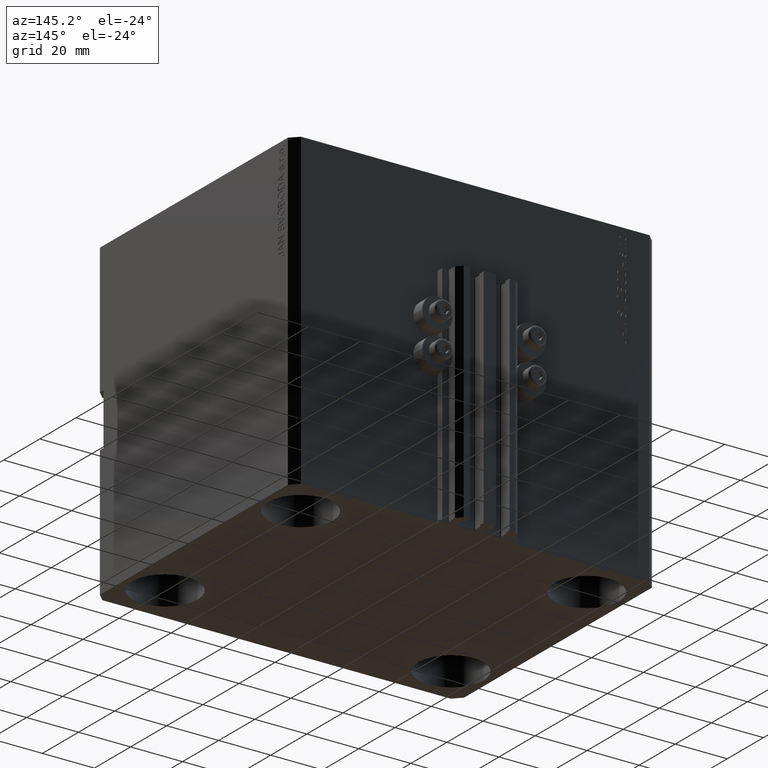
[diagram: clean part render]
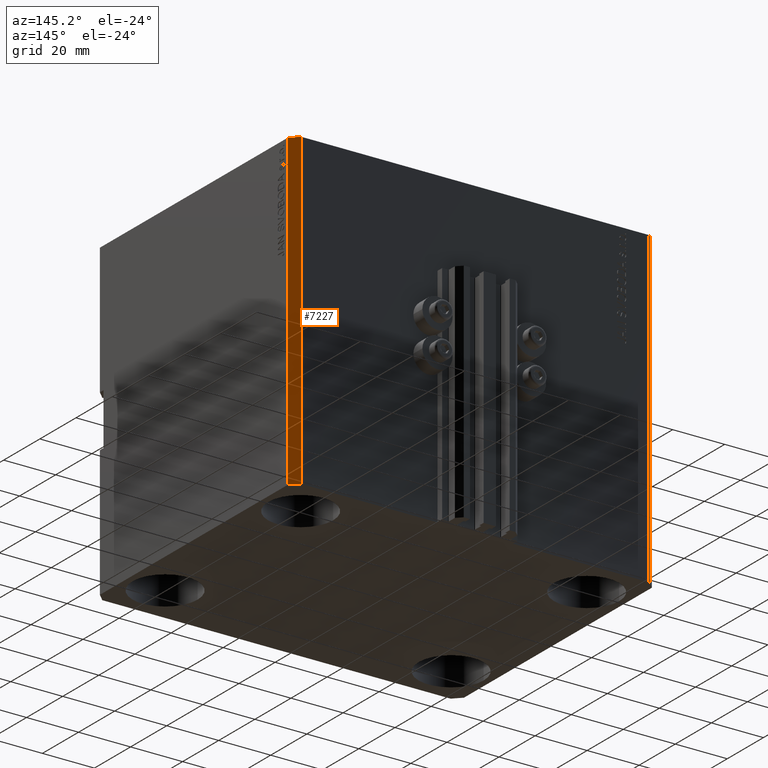
[diagram: same view with one face highlighted and labeled with its STEP entity id]
A machine part, auxiliary view. The second image highlights one B-rep face of the part: STEP entity #7227.
In plain terms, the highlighted planar face has unit normal (0.7071, 0.7071, 0).
Its self-contained STEP definition (entity closure, byte-faithful):
#2 = DIRECTION ( 'NONE',  ( -0.7071067811865344721, 0.7071067811865605623, 0.000000000000000000 ) ) ;
#621 = CARTESIAN_POINT ( 'NONE',  ( 70.00000000000056843, 51.99999999999996447, 0.000000000000000000 ) ) ;
#1131 = DIRECTION ( 'NONE',  ( 0.000000000000000000, 0.000000000000000000, 1.000000000000000000 ) ) ;
#3136 = EDGE_CURVE ( 'NONE', #48334, #36808, #33038, .T. ) ;
#3178 = DIRECTION ( 'NONE',  ( -0.7071067811865344721, 0.7071067811865606734, 0.000000000000000000 ) ) ;
#3728 = CARTESIAN_POINT ( 'NONE',  ( 70.00000000000056843, 51.99999999999996447, -120.0000000000000000 ) ) ;
#7227 = ADVANCED_FACE ( 'NONE', ( #33078 ), #41452, .T. ) ;
#8100 = VERTEX_POINT ( 'NONE', #29302 ) ;
#9168 = VERTEX_POINT ( 'NONE', #38591 ) ;
#9866 = DIRECTION ( 'NONE',  ( 0.000000000000000000, 0.000000000000000000, 1.000000000000000000 ) ) ;
#10343 = CARTESIAN_POINT ( 'NONE',  ( 67.00000000000061107, 55.00000000000002132, -120.0000000000000000 ) ) ;
#10468 = EDGE_LOOP ( 'NONE', ( #23968, #43682, #45877, #15947 ) ) ;
#11570 = DIRECTION ( 'NONE',  ( -0.7071067811865344721, 0.7071067811865606734, 0.000000000000000000 ) ) ;
#13647 = VECTOR ( 'NONE', #3178, 1000.000000000000000 ) ;
#14323 = DIRECTION ( 'NONE',  ( 0.7071067811865605623, 0.7071067811865344721, -0.000000000000000000 ) ) ;
#15947 = ORIENTED_EDGE ( 'NONE', *, *, #3136, .T. ) ;
#16887 = CARTESIAN_POINT ( 'NONE',  ( 67.00000000000061107, 55.00000000000002132, -120.0000000000000000 ) ) ;
#17462 = VECTOR ( 'NONE', #11570, 1000.000000000000000 ) ;
#18957 = CARTESIAN_POINT ( 'NONE',  ( 70.00000000000056843, 51.99999999999996447, -120.0000000000000000 ) ) ;
#19694 = CARTESIAN_POINT ( 'NONE',  ( 67.00000000000061107, 55.00000000000002132, 0.000000000000000000 ) ) ;
#20343 = AXIS2_PLACEMENT_3D ( 'NONE', #3728, #14323, #2 ) ;
#21561 = EDGE_CURVE ( 'NONE', #8100, #9168, #23356, .T. ) ;
#23356 = LINE ( 'NONE', #34939, #32530 ) ;
#23968 = ORIENTED_EDGE ( 'NONE', *, *, #46145, .F. ) ;
#25862 = LINE ( 'NONE', #621, #13647 ) ;
#29302 = CARTESIAN_POINT ( 'NONE',  ( 70.00000000000056843, 51.99999999999996447, -120.0000000000000000 ) ) ;
#32530 = VECTOR ( 'NONE', #1131, 1000.000000000000000 ) ;
#32926 = VECTOR ( 'NONE', #9866, 1000.000000000000000 ) ;
#33031 = LINE ( 'NONE', #18957, #17462 ) ;
#33038 = LINE ( 'NONE', #10343, #32926 ) ;
#33078 = FACE_OUTER_BOUND ( 'NONE', #10468, .T. ) ;
#34939 = CARTESIAN_POINT ( 'NONE',  ( 70.00000000000056843, 51.99999999999996447, -120.0000000000000000 ) ) ;
#36808 = VERTEX_POINT ( 'NONE', #19694 ) ;
#38591 = CARTESIAN_POINT ( 'NONE',  ( 70.00000000000056843, 51.99999999999996447, 0.000000000000000000 ) ) ;
#41452 = PLANE ( 'NONE',  #20343 ) ;
#42352 = EDGE_CURVE ( 'NONE', #8100, #48334, #33031, .T. ) ;
#43682 = ORIENTED_EDGE ( 'NONE', *, *, #21561, .F. ) ;
#45877 = ORIENTED_EDGE ( 'NONE', *, *, #42352, .T. ) ;
#46145 = EDGE_CURVE ( 'NONE', #9168, #36808, #25862, .T. ) ;
#48334 = VERTEX_POINT ( 'NONE', #16887 ) ;